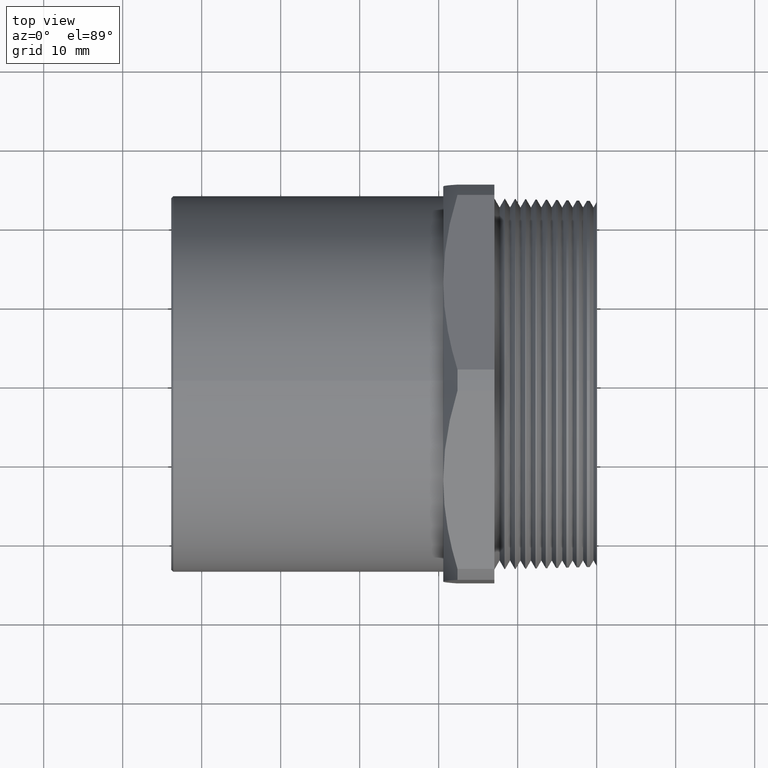
[diagram: clean part render]
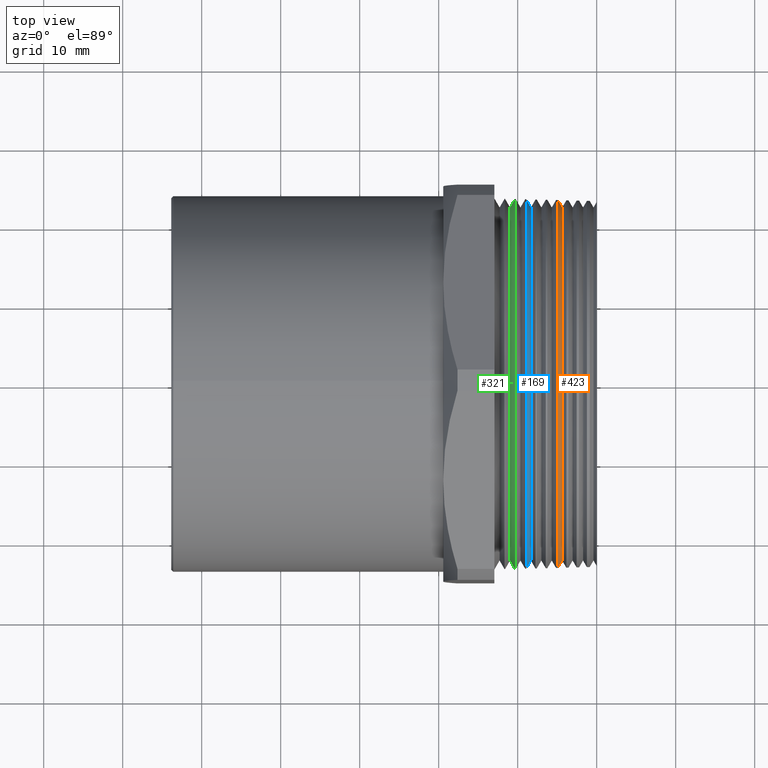
[diagram: same view with three faces highlighted in distinct colors, each labeled with its STEP entity id]
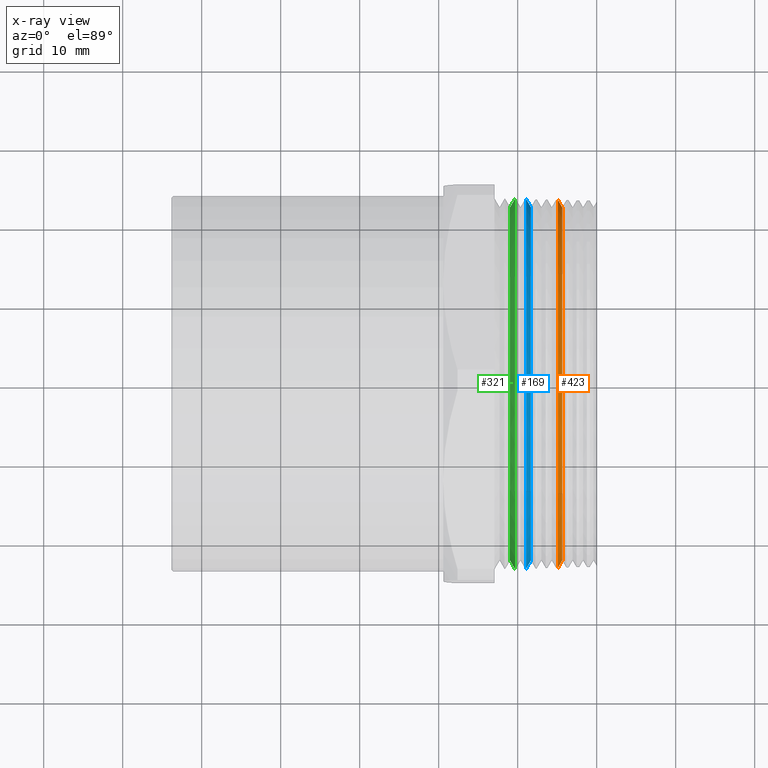
[diagram: x-ray of the same camera — body ghosted, the three highlighted faces saturated]
A machine part, top view with three faces highlighted in distinct colors.
The next image is the same camera in x-ray (body ghosted, the three faces saturated) — at least one of them is partly hidden behind the body in this view.
Their STEP definitions:

[orange] entity #423 — the highlighted conical surface has half-angle 60 deg.
#423 = ADVANCED_FACE ( 'NONE', ( #1766 ), #1765, .T. ) ;
#468 = EDGE_LOOP ( 'NONE', ( #469, #470, #495, #498, #501 ) ) ;
#469 = ORIENTED_EDGE ( 'NONE', *, *, #482, .F. ) ;
#470 = ORIENTED_EDGE ( 'NONE', *, *, #471, .T. ) ;
#471 = EDGE_CURVE ( 'NONE', #486, #472, #1870, .T. ) ;
#472 = VERTEX_POINT ( 'NONE', #1866 ) ;
#482 = EDGE_CURVE ( 'NONE', #486, #487, #1909, .T. ) ;
#486 = VERTEX_POINT ( 'NONE', #1898 ) ;
#487 = VERTEX_POINT ( 'NONE', #1897 ) ;
#495 = ORIENTED_EDGE ( 'NONE', *, *, #496, .F. ) ;
#496 = EDGE_CURVE ( 'NONE', #497, #472, #1885, .T. ) ;
#497 = VERTEX_POINT ( 'NONE', #1880 ) ;
#498 = ORIENTED_EDGE ( 'NONE', *, *, #499, .F. ) ;
#499 = EDGE_CURVE ( 'NONE', #500, #497, #1939, .T. ) ;
#500 = VERTEX_POINT ( 'NONE', #1934 ) ;
#501 = ORIENTED_EDGE ( 'NONE', *, *, #502, .F. ) ;
#502 = EDGE_CURVE ( 'NONE', #487, #500, #1933, .T. ) ;
#1761 = DIRECTION ( 'NONE',  ( -3.691686477924679300E-017, -1.000000000000000000, 0.0000000000000000000 ) ) ;
#1762 = DIRECTION ( 'NONE',  ( -1.000000000000000000, 3.789761643835506200E-017, 0.0000000000000000000 ) ) ;
#1763 = CARTESIAN_POINT ( 'NONE',  ( -0.1980000000000000400, -5.026000919179589900E-017, 0.0000000000000000000 ) ) ;
#1764 = AXIS2_PLACEMENT_3D ( 'NONE', #1763, #1762, #1761 ) ;
#1765 = CONICAL_SURFACE ( 'NONE', #1764, 0.9250000000000001600, 1.047197551196594700 ) ;
#1766 = FACE_OUTER_BOUND ( 'NONE', #468, .T. ) ;
#1866 = CARTESIAN_POINT ( 'NONE',  ( -0.1932106362018242200, 0.9167045785656285900, 1.122602251489533400E-016 ) ) ;
#1867 = DIRECTION ( 'NONE',  ( -0.5000000000000025500, 0.8660254037844371500, 1.060540212046011600E-016 ) ) ;
#1868 = VECTOR ( 'NONE', #1867, 39.37007874015748100 ) ;
#1869 = CARTESIAN_POINT ( 'NONE',  ( -0.1980000000000000100, 0.9250000000000001600, 1.132760877285699100E-016 ) ) ;
#1870 = LINE ( 'NONE', #1869, #1868 ) ;
#1880 = CARTESIAN_POINT ( 'NONE',  ( -0.1932106362018242200, -5.044151466400291300E-017, 0.9167045785656285900 ) ) ;
#1881 = DIRECTION ( 'NONE',  ( 0.0000000000000000000, 0.0000000000000000000, 1.000000000000000000 ) ) ;
#1882 = DIRECTION ( 'NONE',  ( -1.000000000000000000, -0.0000000000000000000, -0.0000000000000000000 ) ) ;
#1883 = CARTESIAN_POINT ( 'NONE',  ( -0.1932106362018242200, -5.044151466400291300E-017, 0.0000000000000000000 ) ) ;
#1884 = AXIS2_PLACEMENT_3D ( 'NONE', #1883, #1882, #1881 ) ;
#1885 = CIRCLE ( 'NONE', #1884, 0.9167045785656285900 ) ;
#1897 = CARTESIAN_POINT ( 'NONE',  ( -0.1719272779662676100, -0.8798407207459552100, 0.0000000000000000000 ) ) ;
#1898 = CARTESIAN_POINT ( 'NONE',  ( -0.1719272779662675600, 0.8798407207459552100, 1.100030394233345000E-016 ) ) ;
#1905 = DIRECTION ( 'NONE',  ( 3.881168388279586600E-017, 1.000000000000000000, 0.0000000000000000000 ) ) ;
#1906 = DIRECTION ( 'NONE',  ( 1.000000000000000000, -3.789761643835506200E-017, -0.0000000000000000000 ) ) ;
#1907 = CARTESIAN_POINT ( 'NONE',  ( -0.1719272779662675800, -5.124810321093412800E-017, 0.0000000000000000000 ) ) ;
#1908 = AXIS2_PLACEMENT_3D ( 'NONE', #1907, #1906, #1905 ) ;
#1909 = CIRCLE ( 'NONE', #1908, 0.8798407207459552100 ) ;
#1930 = DIRECTION ( 'NONE',  ( -0.5000000000000025500, -0.8660254037844371500, 0.0000000000000000000 ) ) ;
#1931 = VECTOR ( 'NONE', #1930, 39.37007874015748100 ) ;
#1932 = CARTESIAN_POINT ( 'NONE',  ( -0.1980000000000000900, -0.9250000000000001600, 0.0000000000000000000 ) ) ;
#1933 = LINE ( 'NONE', #1932, #1931 ) ;
#1934 = CARTESIAN_POINT ( 'NONE',  ( -0.1932106362018242200, -0.9167045785656284800, 0.0000000000000000000 ) ) ;
#1935 = DIRECTION ( 'NONE',  ( 0.0000000000000000000, 0.0000000000000000000, 1.000000000000000000 ) ) ;
#1936 = DIRECTION ( 'NONE',  ( -1.000000000000000000, -0.0000000000000000000, -0.0000000000000000000 ) ) ;
#1937 = CARTESIAN_POINT ( 'NONE',  ( -0.1932106362018242200, -5.044151466400291300E-017, 0.0000000000000000000 ) ) ;
#1938 = AXIS2_PLACEMENT_3D ( 'NONE', #1937, #1936, #1935 ) ;
#1939 = CIRCLE ( 'NONE', #1938, 0.9167045785656285900 ) ;

[blue] entity #169 — the highlighted conical surface has half-angle 60 deg.
#153 = EDGE_CURVE ( 'NONE', #158, #165, #1251, .T. ) ;
#154 = ORIENTED_EDGE ( 'NONE', *, *, #153, .F. ) ;
#155 = EDGE_CURVE ( 'NONE', #164, #158, #1246, .T. ) ;
#156 = EDGE_CURVE ( 'NONE', #240, #165, #1305, .T. ) ;
#157 = ORIENTED_EDGE ( 'NONE', *, *, #155, .F. ) ;
#158 = VERTEX_POINT ( 'NONE', #1301 ) ;
#164 = VERTEX_POINT ( 'NONE', #1286 ) ;
#165 = VERTEX_POINT ( 'NONE', #1285 ) ;
#167 = EDGE_LOOP ( 'NONE', ( #174, #170, #154, #157, #254 ) ) ;
#169 = ADVANCED_FACE ( 'NONE', ( #1279 ), #1342, .T. ) ;
#170 = ORIENTED_EDGE ( 'NONE', *, *, #156, .T. ) ;
#174 = ORIENTED_EDGE ( 'NONE', *, *, #261, .F. ) ;
#239 = VERTEX_POINT ( 'NONE', #1414 ) ;
#240 = VERTEX_POINT ( 'NONE', #1413 ) ;
#254 = ORIENTED_EDGE ( 'NONE', *, *, #256, .F. ) ;
#256 = EDGE_CURVE ( 'NONE', #239, #164, #1451, .T. ) ;
#261 = EDGE_CURVE ( 'NONE', #240, #239, #1488, .T. ) ;
#1246 = CIRCLE ( 'NONE', #1309, 0.9208522892828142600 ) ;
#1247 = DIRECTION ( 'NONE',  ( 0.0000000000000000000, 0.0000000000000000000, 1.000000000000000000 ) ) ;
#1248 = DIRECTION ( 'NONE',  ( -1.000000000000000000, -0.0000000000000000000, -0.0000000000000000000 ) ) ;
#1249 = CARTESIAN_POINT ( 'NONE',  ( -0.3516053181009121100, -4.443873376351601100E-017, 0.0000000000000000000 ) ) ;
#1250 = AXIS2_PLACEMENT_3D ( 'NONE', #1249, #1248, #1247 ) ;
#1251 = CIRCLE ( 'NONE', #1250, 0.9208522892828142600 ) ;
#1279 = FACE_OUTER_BOUND ( 'NONE', #167, .T. ) ;
#1285 = CARTESIAN_POINT ( 'NONE',  ( -0.3516053181009121100, 0.9208522892828143700, 1.127681564387616400E-016 ) ) ;
#1286 = CARTESIAN_POINT ( 'NONE',  ( -0.3516053181009121100, -0.9208522892828141500, 0.0000000000000000000 ) ) ;
#1301 = CARTESIAN_POINT ( 'NONE',  ( -0.3516053181009121100, -4.443873376351601100E-017, 0.9208522892828142600 ) ) ;
#1302 = DIRECTION ( 'NONE',  ( -0.5000000000000025500, 0.8660254037844371500, 1.060540212046011600E-016 ) ) ;
#1303 = VECTOR ( 'NONE', #1302, 39.37007874015748100 ) ;
#1304 = CARTESIAN_POINT ( 'NONE',  ( -0.3539999999999999800, 0.9250000000000001600, 1.132760877285699100E-016 ) ) ;
#1305 = LINE ( 'NONE', #1304, #1303 ) ;
#1306 = DIRECTION ( 'NONE',  ( 0.0000000000000000000, 0.0000000000000000000, 1.000000000000000000 ) ) ;
#1307 = DIRECTION ( 'NONE',  ( -1.000000000000000000, -0.0000000000000000000, -0.0000000000000000000 ) ) ;
#1308 = CARTESIAN_POINT ( 'NONE',  ( -0.3516053181009121100, -4.443873376351601100E-017, 0.0000000000000000000 ) ) ;
#1309 = AXIS2_PLACEMENT_3D ( 'NONE', #1308, #1307, #1306 ) ;
#1338 = DIRECTION ( 'NONE',  ( -7.383372955849358500E-017, -1.000000000000000000, 0.0000000000000000000 ) ) ;
#1339 = DIRECTION ( 'NONE',  ( -1.000000000000000000, 3.789761643835506200E-017, 0.0000000000000000000 ) ) ;
#1340 = CARTESIAN_POINT ( 'NONE',  ( -0.3540000000000000400, -4.434798102741250100E-017, 0.0000000000000000000 ) ) ;
#1341 = AXIS2_PLACEMENT_3D ( 'NONE', #1340, #1339, #1338 ) ;
#1342 = CONICAL_SURFACE ( 'NONE', #1341, 0.9250000000000001600, 1.047197551196594700 ) ;
#1413 = CARTESIAN_POINT ( 'NONE',  ( -0.3279272779662675800, 0.8798407207459552100, 1.102570050682386400E-016 ) ) ;
#1414 = CARTESIAN_POINT ( 'NONE',  ( -0.3279272779662675800, -0.8798407207459552100, 0.0000000000000000000 ) ) ;
#1448 = DIRECTION ( 'NONE',  ( -0.5000000000000025500, -0.8660254037844371500, 0.0000000000000000000 ) ) ;
#1449 = VECTOR ( 'NONE', #1448, 39.37007874015748100 ) ;
#1450 = CARTESIAN_POINT ( 'NONE',  ( -0.3540000000000000900, -0.9250000000000001600, 0.0000000000000000000 ) ) ;
#1451 = LINE ( 'NONE', #1450, #1449 ) ;
#1485 = DIRECTION ( 'NONE',  ( 0.0000000000000000000, 1.000000000000000000, 0.0000000000000000000 ) ) ;
#1486 = DIRECTION ( 'NONE',  ( 1.000000000000000000, -3.789761643835506200E-017, -0.0000000000000000000 ) ) ;
#1487 = AXIS2_PLACEMENT_3D ( 'NONE', #1495, #1486, #1485 ) ;
#1488 = CIRCLE ( 'NONE', #1487, 0.8798407207459552100 ) ;
#1495 = CARTESIAN_POINT ( 'NONE',  ( -0.3279272779662675800, -4.533607504655074200E-017, 0.0000000000000000000 ) ) ;

[green] entity #321 — the highlighted conical surface has half-angle 60 deg.
#311 = EDGE_LOOP ( 'NONE', ( #691, #697, #703, #627, #633 ) ) ;
#321 = ADVANCED_FACE ( 'NONE', ( #1567 ), #1566, .T. ) ;
#627 = ORIENTED_EDGE ( 'NONE', *, *, #629, .F. ) ;
#629 = EDGE_CURVE ( 'NONE', #631, #705, #2147, .T. ) ;
#631 = VERTEX_POINT ( 'NONE', #2137 ) ;
#633 = ORIENTED_EDGE ( 'NONE', *, *, #634, .F. ) ;
#634 = EDGE_CURVE ( 'NONE', #694, #631, #2136, .T. ) ;
#691 = ORIENTED_EDGE ( 'NONE', *, *, #693, .T. ) ;
#693 = EDGE_CURVE ( 'NONE', #694, #695, #2228, .T. ) ;
#694 = VERTEX_POINT ( 'NONE', #2223 ) ;
#695 = VERTEX_POINT ( 'NONE', #2222 ) ;
#697 = ORIENTED_EDGE ( 'NONE', *, *, #698, .T. ) ;
#698 = EDGE_CURVE ( 'NONE', #695, #700, #2221, .T. ) ;
#700 = VERTEX_POINT ( 'NONE', #2217 ) ;
#703 = ORIENTED_EDGE ( 'NONE', *, *, #704, .F. ) ;
#704 = EDGE_CURVE ( 'NONE', #705, #700, #2275, .T. ) ;
#705 = VERTEX_POINT ( 'NONE', #2270 ) ;
#1562 = DIRECTION ( 'NONE',  ( 1.000000000000000000, -3.789761643835506200E-017, -0.0000000000000000000 ) ) ;
#1563 = AXIS2_PLACEMENT_3D ( 'NONE', #1565, #1562, #1625 ) ;
#1565 = CARTESIAN_POINT ( 'NONE',  ( -0.4319272779662675100, -4.139472293696182000E-017, 0.0000000000000000000 ) ) ;
#1566 = CONICAL_SURFACE ( 'NONE', #1563, 0.8798407207459552100, 1.047197551196606700 ) ;
#1567 = FACE_OUTER_BOUND ( 'NONE', #311, .T. ) ;
#1625 = DIRECTION ( 'NONE',  ( 0.0000000000000000000, 1.000000000000000000, 0.0000000000000000000 ) ) ;
#2133 = DIRECTION ( 'NONE',  ( 0.4999999999999922300, 0.8660254037844431500, 0.0000000000000000000 ) ) ;
#2134 = VECTOR ( 'NONE', #2133, 39.37007874015748100 ) ;
#2135 = CARTESIAN_POINT ( 'NONE',  ( -0.4319272779662675100, 0.8798407207459552100, 0.0000000000000000000 ) ) ;
#2136 = LINE ( 'NONE', #2135, #2134 ) ;
#2137 = CARTESIAN_POINT ( 'NONE',  ( -0.4074056237637049800, 0.9223134717104294300, 0.0000000000000000000 ) ) ;
#2138 = DIRECTION ( 'NONE',  ( 7.404879353540265300E-017, 1.000000000000000000, 0.0000000000000000000 ) ) ;
#2139 = DIRECTION ( 'NONE',  ( 1.000000000000000000, -3.789761643835506200E-017, -0.0000000000000000000 ) ) ;
#2140 = CARTESIAN_POINT ( 'NONE',  ( -0.4074056237637049800, 0.0000000000000000000, 0.0000000000000000000 ) ) ;
#2141 = AXIS2_PLACEMENT_3D ( 'NONE', #2140, #2139, #2138 ) ;
#2147 = CIRCLE ( 'NONE', #2141, 0.9223134717104368700 ) ;
#2217 = CARTESIAN_POINT ( 'NONE',  ( -0.4074056237637050400, -0.9223134717104293200, 1.129470937672567200E-016 ) ) ;
#2218 = DIRECTION ( 'NONE',  ( 0.4999999999999921700, -0.8660254037844431500, 1.060540212046018900E-016 ) ) ;
#2219 = VECTOR ( 'NONE', #2218, 39.37007874015748100 ) ;
#2220 = CARTESIAN_POINT ( 'NONE',  ( -0.4319272779662675100, -0.8798407207459552100, 1.077458536977156700E-016 ) ) ;
#2221 = LINE ( 'NONE', #2220, #2219 ) ;
#2222 = CARTESIAN_POINT ( 'NONE',  ( -0.4319272779662675100, -0.8798407207459552100, 0.0000000000000000000 ) ) ;
#2223 = CARTESIAN_POINT ( 'NONE',  ( -0.4319272779662675100, 0.8798407207459552100, 1.104263154981747600E-016 ) ) ;
#2224 = DIRECTION ( 'NONE',  ( 0.0000000000000000000, 1.000000000000000000, 0.0000000000000000000 ) ) ;
#2225 = DIRECTION ( 'NONE',  ( 1.000000000000000000, -3.789761643835506200E-017, -0.0000000000000000000 ) ) ;
#2226 = CARTESIAN_POINT ( 'NONE',  ( -0.4319272779662675100, -4.139472293696182000E-017, 0.0000000000000000000 ) ) ;
#2227 = AXIS2_PLACEMENT_3D ( 'NONE', #2226, #2225, #2224 ) ;
#2228 = CIRCLE ( 'NONE', #2227, 0.8798407207459552100 ) ;
#2270 = CARTESIAN_POINT ( 'NONE',  ( -0.4074056237637049800, 0.0000000000000000000, 0.9223134717104368700 ) ) ;
#2271 = DIRECTION ( 'NONE',  ( 7.404879353540265300E-017, 1.000000000000000000, 0.0000000000000000000 ) ) ;
#2272 = DIRECTION ( 'NONE',  ( 1.000000000000000000, -3.789761643835506200E-017, -0.0000000000000000000 ) ) ;
#2273 = CARTESIAN_POINT ( 'NONE',  ( -0.4074056237637049800, 0.0000000000000000000, 0.0000000000000000000 ) ) ;
#2274 = AXIS2_PLACEMENT_3D ( 'NONE', #2273, #2272, #2271 ) ;
#2275 = CIRCLE ( 'NONE', #2274, 0.9223134717104368700 ) ;